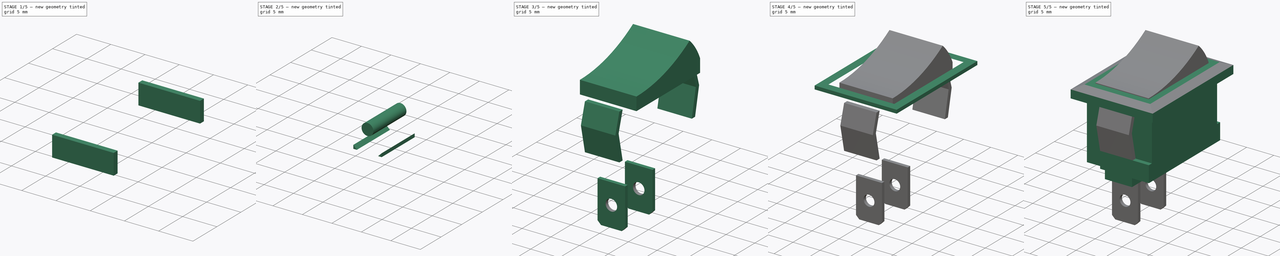
[diagram: build sequence overview — one tinted view per stage of 5, left to right]
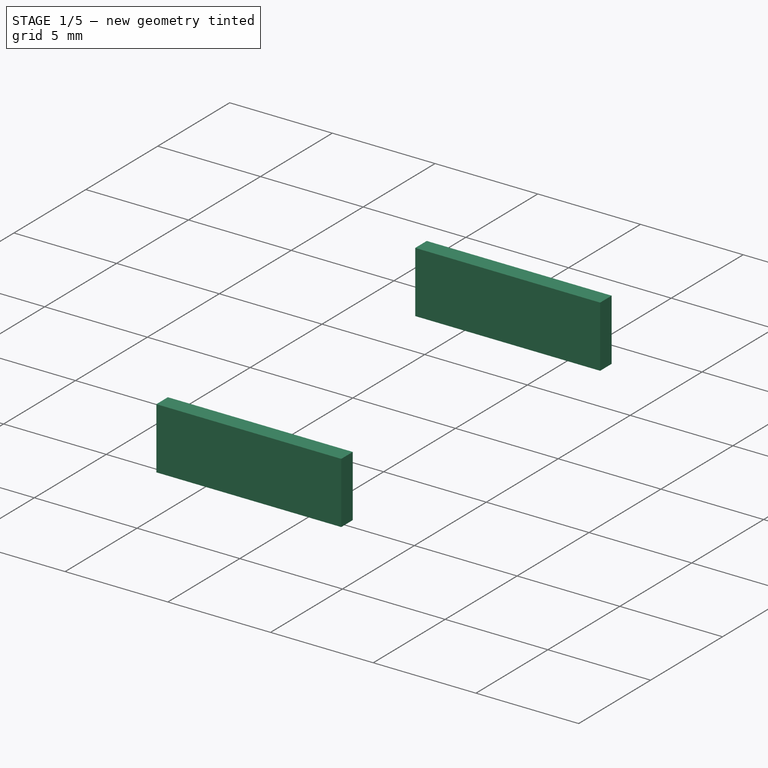
[diagram: stage 1 of 5 — iso view after this stage's code; geometry added in this stage tinted green]
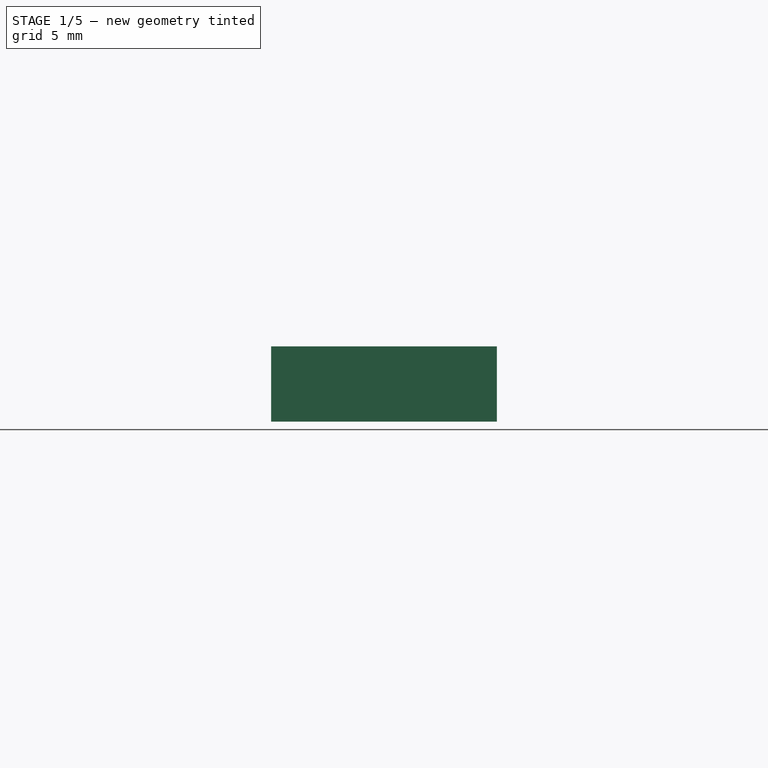
[diagram: stage 1 of 5 — front view after this stage's code; geometry added in this stage tinted green]
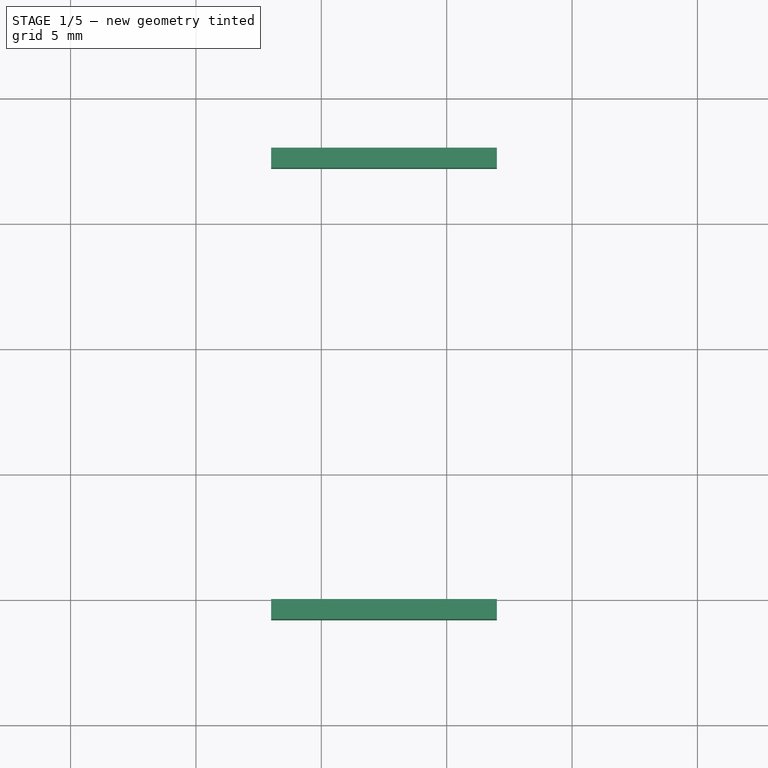
[diagram: stage 1 of 5 — top view after this stage's code; geometry added in this stage tinted green]
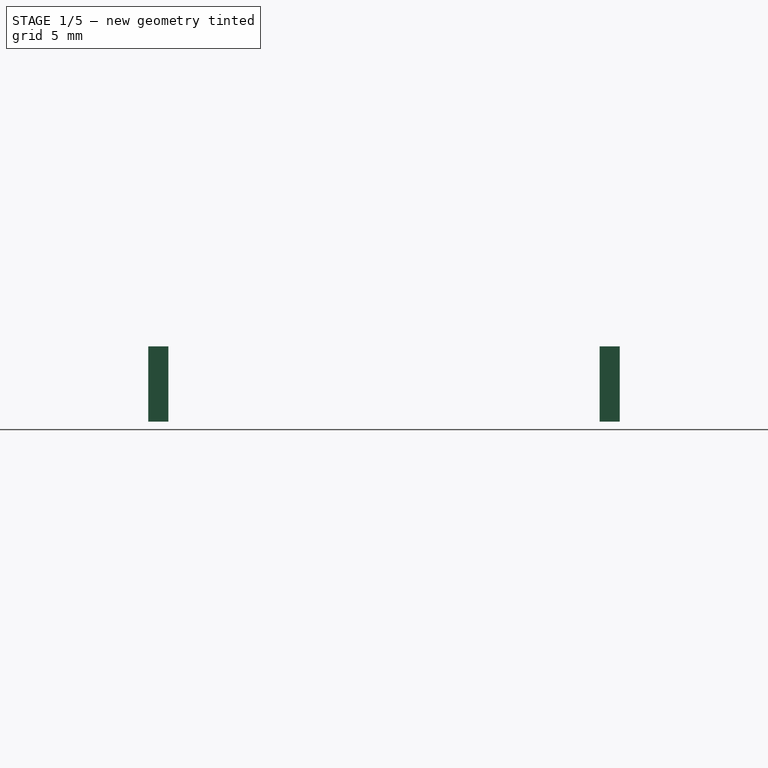
[diagram: stage 1 of 5 — right view after this stage's code; geometry added in this stage tinted green]
FCSTD DOCUMENT  (FreeCAD 1.0R39319 (Git))
Label: interruptor
License: All rights reserved
LicenseURL: https://en.wikipedia.org/wiki/All_rights_reserved
objects: Sketcher::SketchObject×11, Part::Extrusion×11, Part::MultiFuse×2, Part::Cut×2
note: 37 computed .brp shape members not serialized (recipe doc carries the construction recipe); baked Part::Feature solids carry a one-line shape summary decoded from their .brp

FEATURE [Sketcher::SketchObject] Sketch
  ArcFitTolerance = 1e-06
  FullyConstrained = true
  MakeInternals = false
  sketch-geometry (4):
    g0: LineSegment StartX=0 StartY=0 StartZ=0 EndX=12 EndY=0 EndZ=0
    g1: LineSegment StartX=12 StartY=0 StartZ=0 EndX=12 EndY=17.2 EndZ=0
    g2: LineSegment StartX=12 StartY=17.2 StartZ=0 EndX=0 EndY=17.2 EndZ=0
    g3: LineSegment StartX=0 StartY=17.2 StartZ=0 EndX=0 EndY=0 EndZ=0
  constraints (11):
    c: Coincident(g0,g1)
    c: Coincident(g1,g2)
    c: Coincident(g2,g3)
    c: Coincident(g3,g0)
    c: Horizontal(g0)
    c: Horizontal(g2)
    c: Vertical(g1)
    c: Vertical(g3)
    c: Distance(g1,g3) = 12
    c: Distance(g0,g2) = 17.2
    c: Coincident(g0,g-1)
FEATURE [Part::Extrusion] Extrude
  Base = -> Sketch
  Dir = (0,0,1)
  DirMode = 2
  FaceMakerClass = Part::FaceMakerBullseye
  FaceMakerMode = 3
  LengthFwd = 11
  LengthRev = 0
  Solid = true
  Symmetric = false
FEATURE [Sketcher::SketchObject] Sketch001
  ArcFitTolerance = 1e-06
  AttachmentSupport = -> [Extrude]
  ExternalGeometry = -> [Extrude]
  FullyConstrained = true
  MakeInternals = false
  MapMode = 5
  Placement = pos=(0,0,0) rot=(1,0,0;1.5708rad)
  sketch-geometry (4):
    g0: LineSegment StartX=12 StartY=0 StartZ=0 EndX=12 EndY=3 EndZ=0
    g1: LineSegment StartX=12 StartY=3 StartZ=0 EndX=3 EndY=3 EndZ=0
    g2: LineSegment StartX=3 StartY=3 StartZ=0 EndX=3 EndY=0 EndZ=0
    g3: LineSegment StartX=3 StartY=0 StartZ=0 EndX=12 EndY=0 EndZ=0
  constraints (11):
    c: Coincident(g0,g1)
    c: Coincident(g1,g2)
    c: Coincident(g2,g3)
    c: Coincident(g3,g0)
    c: Vertical(g0)
    c: Vertical(g2)
    c: Horizontal(g1)
    c: Horizontal(g3)
    c: Distance(g0,g2) = 9
    c: Distance(g1,g3) = 3
    c: Coincident(g0,g-3)
FEATURE [Part::Extrusion] Extrude001
  Base = -> Sketch001
  Dir = (0,-1,2e-16)
  DirMode = 2
  FaceMakerClass = Part::FaceMakerBullseye
  FaceMakerMode = 3
  LengthFwd = 0.8
  LengthRev = 0
  Solid = true
  Symmetric = false
FEATURE [Sketcher::SketchObject] Sketch002
  ArcFitTolerance = 1e-06
  AttachmentSupport = -> [Extrude]
  ExternalGeometry = -> [Extrude]
  FullyConstrained = true
  MakeInternals = false
  MapMode = 5
  Placement = pos=(0,17.2,0) rot=(0,0.707107,0.707107;3.14159rad)
  sketch-geometry (4):
    g0: LineSegment StartX=-12 StartY=0 StartZ=0 EndX=-3 EndY=0 EndZ=0
    g1: LineSegment StartX=-3 StartY=0 StartZ=0 EndX=-3 EndY=3 EndZ=0
    g2: LineSegment StartX=-3 StartY=3 StartZ=0 EndX=-12 EndY=3 EndZ=0
    g3: LineSegment StartX=-12 StartY=3 StartZ=0 EndX=-12 EndY=0 EndZ=0
  constraints (11):
    c: Coincident(g0,g1)
    c: Coincident(g1,g2)
    c: Coincident(g2,g3)
    c: Coincident(g3,g0)
    c: Horizontal(g0)
    c: Horizontal(g2)
    c: Vertical(g1)
    c: Vertical(g3)
    c: Distance(g1,g3) = 9
    c: Distance(g0,g2) = 3
    c: Coincident(g0,g-3)
FEATURE [Part::Extrusion] Extrude002
  Base = -> Sketch002
  Dir = (0,1,-2e-16)
  DirMode = 2
  FaceMakerClass = Part::FaceMakerBullseye
  FaceMakerMode = 3
  LengthFwd = 0.8
  LengthRev = 0
  Solid = true
  Symmetric = false
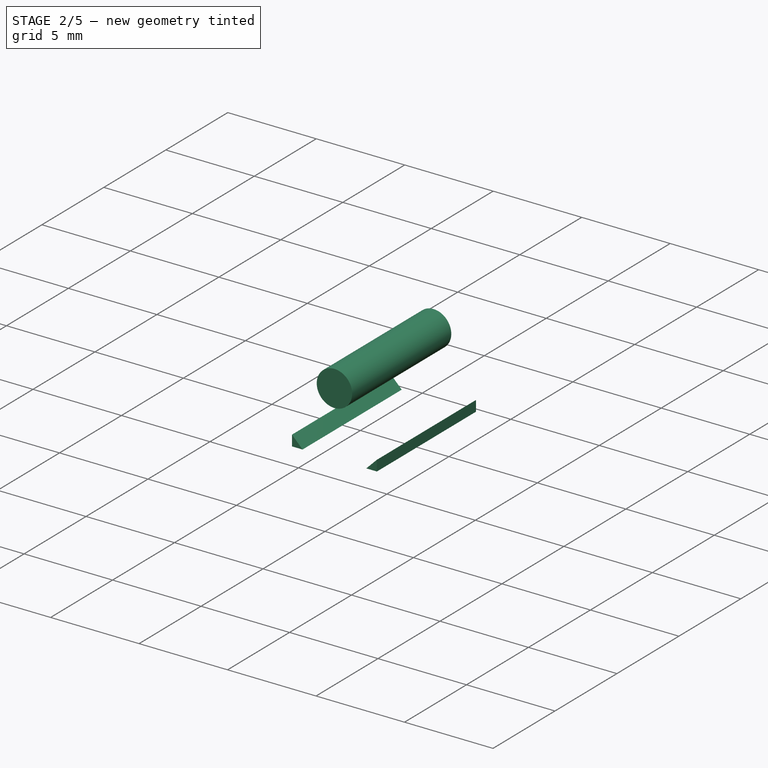
[diagram: stage 2 of 5 — iso view after this stage's code; geometry added in this stage tinted green]
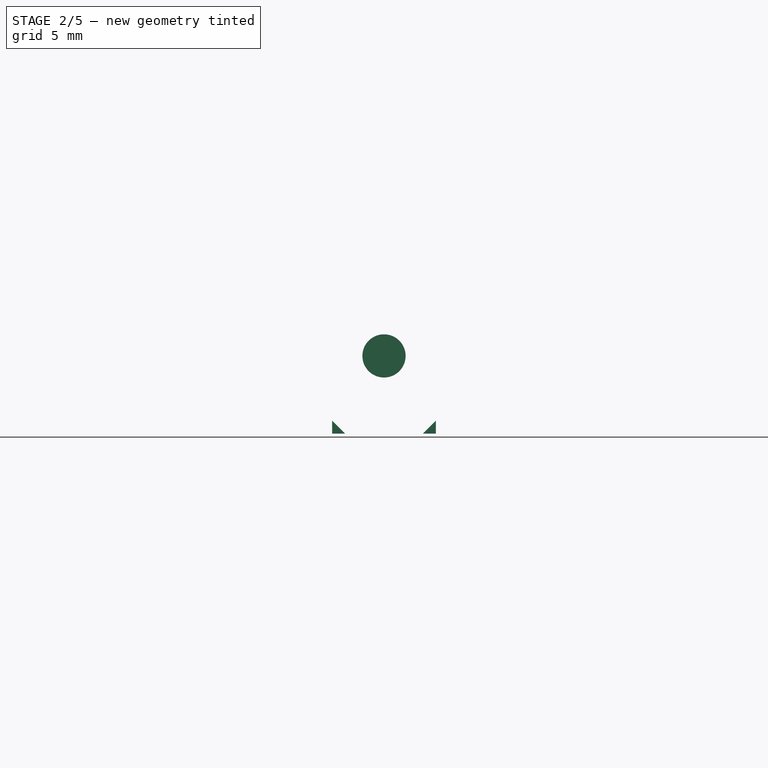
[diagram: stage 2 of 5 — front view after this stage's code; geometry added in this stage tinted green]
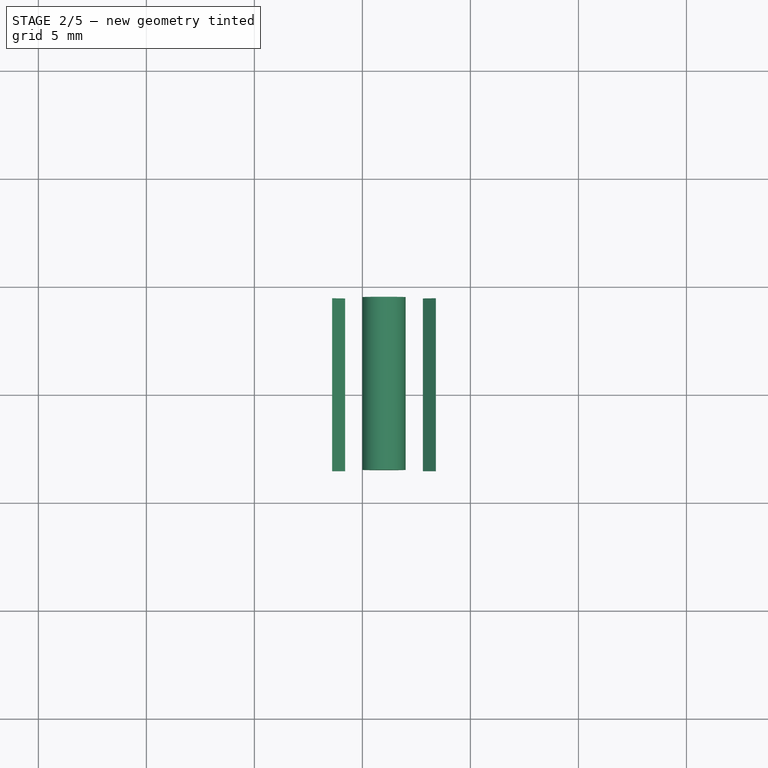
[diagram: stage 2 of 5 — top view after this stage's code; geometry added in this stage tinted green]
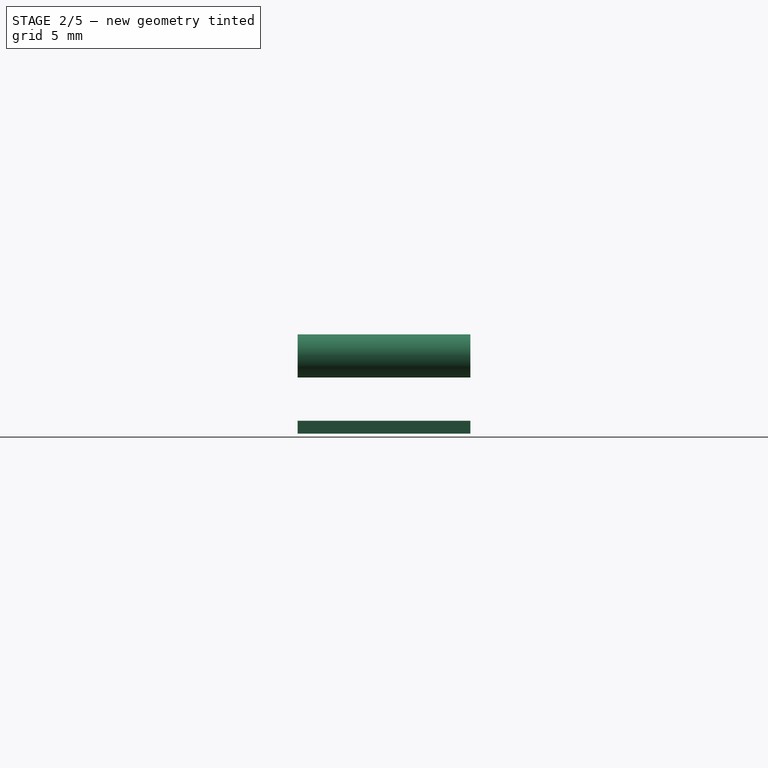
[diagram: stage 2 of 5 — right view after this stage's code; geometry added in this stage tinted green]
FEATURE [Sketcher::SketchObject] Sketch008
  ArcFitTolerance = 1e-06
  AttachmentSupport = -> [Extrude]
  ExternalGeometry = -> [Extrude,Extrude001,Extrude002]
  FullyConstrained = true
  MakeInternals = false
  MapMode = 5
  Placement = pos=(0,0,0) rot=(1,0,0;3.14159rad)
  sketch-geometry (16):
    g0: LineSegment StartX=3.5 StartY=0.25 StartZ=0 EndX=3.5 EndY=-3.85 EndZ=0
    g1: LineSegment StartX=3.5 StartY=-3.85 StartZ=0 EndX=8.5 EndY=-3.85 EndZ=0
    g2: LineSegment StartX=8.5 StartY=-3.85 StartZ=0 EndX=8.5 EndY=0.25 EndZ=0
    g3: LineSegment StartX=8.5 StartY=0.25 StartZ=0 EndX=3.5 EndY=0.25 EndZ=0
    g4: LineSegment StartX=3.5 StartY=-6.55 StartZ=0 EndX=3.5 EndY=-10.65 EndZ=0
    g5: LineSegment StartX=3.5 StartY=-10.65 StartZ=0 EndX=8.5 EndY=-10.65 EndZ=0
    g6: LineSegment StartX=8.5 StartY=-10.65 StartZ=0 EndX=8.5 EndY=-6.55 EndZ=0
    g7: LineSegment StartX=8.5 StartY=-6.55 StartZ=0 EndX=3.5 EndY=-6.55 EndZ=0
    g8: LineSegment StartX=3.5 StartY=-13.35 StartZ=0 EndX=3.5 EndY=-17.45 EndZ=0
    g9: LineSegment StartX=3.5 StartY=-17.45 StartZ=0 EndX=8.5 EndY=-17.45 EndZ=0
    g10: LineSegment StartX=8.5 StartY=-17.45 StartZ=0 EndX=8.5 EndY=-13.35 EndZ=0
    g11: LineSegment StartX=8.5 StartY=-13.35 StartZ=0 EndX=3.5 EndY=-13.35 EndZ=0
    g12: LineSegment [constr] StartX=3.5 StartY=-8.6 StartZ=0 EndX=0 EndY=-8.6 EndZ=0
    g13: LineSegment [constr] StartX=3.5 StartY=-8.6 StartZ=0 EndX=3.5 EndY=-1.8 EndZ=0
    g14: LineSegment [constr] StartX=3.5 StartY=-8.6 StartZ=0 EndX=3.5 EndY=-15.4 EndZ=0
    g15: LineSegment [constr] StartX=6 StartY=0.25 StartZ=0 EndX=6 EndY=0 EndZ=0
  constraints (44):
    c: Coincident(g0,g1)
    c: Coincident(g1,g2)
    c: Coincident(g2,g3)
    c: Coincident(g3,g0)
    c: Vertical(g0)
    c: Vertical(g2)
    c: Horizontal(g1)
    c: Horizontal(g3)
    c: Coincident(g4,g5)
    c: Coincident(g5,g6)
    c: Coincident(g6,g7)
    c: Coincident(g7,g4)
    c: Vertical(g4)
    c: Vertical(g6)
    c: Horizontal(g5)
    c: Horizontal(g7)
    c: Coincident(g8,g9)
    c: Coincident(g9,g10)
    c: Coincident(g10,g11)
    c: Coincident(g11,g8)
    c: Vertical(g8)
    c: Vertical(g10)
    c: Horizontal(g9)
    c: Horizontal(g11)
    c: DistanceX(g3,g3) = 5
    c: Equal(g3,g7)
    c: Equal(g7,g11)
    c: DistanceY(g0,g0) = 4.1
    c: Equal(g0,g4)
    c: Equal(g4,g8)
    c: Symmetric(g4,g4,g12)
    c: Horizontal(g12)
    c: Symmetric(g-1,g-4,g12)
    c: Coincident(g13,g12)
    c: Vertical(g13)
    c: Symmetric(g0,g0,g13)
    c: DistanceY(g13,g13) = 6.8
    c: Coincident(g14,g12)
    c: Symmetric(g8,g8,g14)
    c: Vertical(g14)
    c: Equal(g14,g13)
    c: Symmetric(g3,g3,g15)
    c: Symmetric(g-3,g-1,g15)
    c: Vertical(g15)
FEATURE [Part::Extrusion] Extrude008
  Base = -> Sketch008
  Dir = (0,0,-1)
  DirMode = 2
  FaceMakerClass = Part::FaceMakerBullseye
  FaceMakerMode = 3
  LengthFwd = 1.8
  LengthRev = 0
  Solid = true
  Symmetric = false
FEATURE [Sketcher::SketchObject] Sketch009
  ArcFitTolerance = 1e-06
  AttachmentSupport = -> [Extrude008]
  ExternalGeometry = -> [Extrude008]
  FullyConstrained = true
  MakeInternals = false
  MapMode = 5
  Placement = pos=(0,0,-1.8) rot=(1,0,0;3.14159rad)
  sketch-geometry (11):
    g0: LineSegment StartX=3.6 StartY=-1.48 StartZ=0 EndX=3.6 EndY=-2.12 EndZ=0
    g1: LineSegment StartX=3.6 StartY=-2.12 StartZ=0 EndX=8.4 EndY=-2.12 EndZ=0
    g2: LineSegment StartX=8.4 StartY=-2.12 StartZ=0 EndX=8.4 EndY=-1.48 EndZ=0
    g3: LineSegment StartX=8.4 StartY=-1.48 StartZ=0 EndX=3.6 EndY=-1.48 EndZ=0
    g4: LineSegment StartX=3.6 StartY=-8.28 StartZ=0 EndX=3.6 EndY=-8.92 EndZ=0
    g5: LineSegment StartX=3.6 StartY=-8.92 StartZ=0 EndX=8.4 EndY=-8.92 EndZ=0
    g6: LineSegment StartX=8.4 StartY=-8.92 StartZ=0 EndX=8.4 EndY=-8.28 EndZ=0
    g7: LineSegment StartX=8.4 StartY=-8.28 StartZ=0 EndX=3.6 EndY=-8.28 EndZ=0
    g8: LineSegment [constr] StartX=3.5 StartY=-1.8 StartZ=0 EndX=3.6 EndY=-1.8 EndZ=0
    g9: LineSegment [constr] StartX=3.5 StartY=-8.6 StartZ=0 EndX=3.6 EndY=-8.6 EndZ=0
    g10: LineSegment [constr] StartX=6 StartY=-1.48 StartZ=0 EndX=6 EndY=0.25 EndZ=0
  constraints (30):
    c: Coincident(g0,g1)
    c: Coincident(g1,g2)
    c: Coincident(g2,g3)
    c: Coincident(g3,g0)
    c: Vertical(g0)
    c: Vertical(g2)
    c: Horizontal(g1)
    c: Horizontal(g3)
    c: Coincident(g4,g5)
    c: Coincident(g5,g6)
    c: Coincident(g6,g7)
    c: Coincident(g7,g4)
    c: Vertical(g4)
    c: Vertical(g6)
    c: Horizontal(g5)
    c: Horizontal(g7)
    c: DistanceY(g0,g0) = 0.64
    c: DistanceX(g3,g3) = 4.8
    c: Equal(g4,g0)
    c: Equal(g3,g7)
    c: Vertical(g1,g6)
    c: Symmetric(g-3,g-3,g8)
    c: Symmetric(g0,g0,g8)
    c: Horizontal(g8)
    c: Symmetric(g-4,g-4,g9)
    c: Symmetric(g4,g4,g9)
    c: Horizontal(g9)
    c: Symmetric(g3,g3,g10)
    c: Symmetric(g-6,g-6,g10)
    c: Vertical(g10)
FEATURE [Part::Extrusion] Extrude009
  Base = -> Sketch009
  Dir = (0,0,-1)
  DirMode = 2
  FaceMakerClass = Part::FaceMakerBullseye
  FaceMakerMode = 3
  LengthFwd = 7.2
  LengthRev = 0
  Solid = true
  Symmetric = false
FEATURE [Sketcher::SketchObject] Sketch010
  ArcFitTolerance = 1e-06
  AttachmentSupport = -> [Extrude009]
  ExternalGeometry = -> [Extrude009]
  FullyConstrained = true
  MakeInternals = false
  MapMode = 5
  Placement = pos=(0,1.48,0) rot=(1,0,0;1.5708rad)
  sketch-geometry (8):
    g0: LineSegment StartX=3.6 StartY=-9 StartZ=0 EndX=4.2 EndY=-9 EndZ=0
    g1: LineSegment StartX=4.2 StartY=-9 StartZ=0 EndX=3.6 EndY=-8.4 EndZ=0
    g2: LineSegment StartX=3.6 StartY=-9 StartZ=0 EndX=3.6 EndY=-8.4 EndZ=0
    g3: LineSegment StartX=8.4 StartY=-9 StartZ=0 EndX=7.8 EndY=-9 EndZ=0
    g4: LineSegment StartX=8.4 StartY=-9 StartZ=0 EndX=8.4 EndY=-8.4 EndZ=0
    g5: LineSegment StartX=7.8 StartY=-9 StartZ=0 EndX=8.4 EndY=-8.4 EndZ=0
    g6: Circle CenterX=6 CenterY=-5.4 CenterZ=0 NormalX=0 NormalY=0 NormalZ=1 AngleXU=0 Radius=1
    g7: LineSegment [constr] StartX=6 StartY=-5.4 StartZ=0 EndX=6 EndY=-9 EndZ=0
  constraints (21):
    c: Coincident(g0,g-3)
    c: Coincident(g1,g0)
    c: Coincident(g2,g0)
    c: Coincident(g2,g1)
    c: Coincident(g3,g-3)
    c: Coincident(g4,g3)
    c: Coincident(g5,g3)
    c: Coincident(g5,g4)
    c: Horizontal(g0)
    c: Horizontal(g3)
    c: Vertical(g4)
    c: Vertical(g2)
    c: Distance(g0) = 0.6
    c: Equal(g2,g0)
    c: Equal(g0,g3)
    c: Equal(g3,g4)
    c: Diameter(g6) = 2
    c: Coincident(g7,g6)
    c: Symmetric(g-3,g-3,g7)
    c: Vertical(g7)
    c: DistanceY(g7,g7) = 3.6
FEATURE [Part::Extrusion] Extrude010
  Base = -> Sketch010
  Dir = (0,-1,2e-16)
  DirMode = 2
  FaceMakerClass = Part::FaceMakerBullseye
  FaceMakerMode = 3
  LengthFwd = 0
  LengthRev = 8
  Solid = true
  Symmetric = false
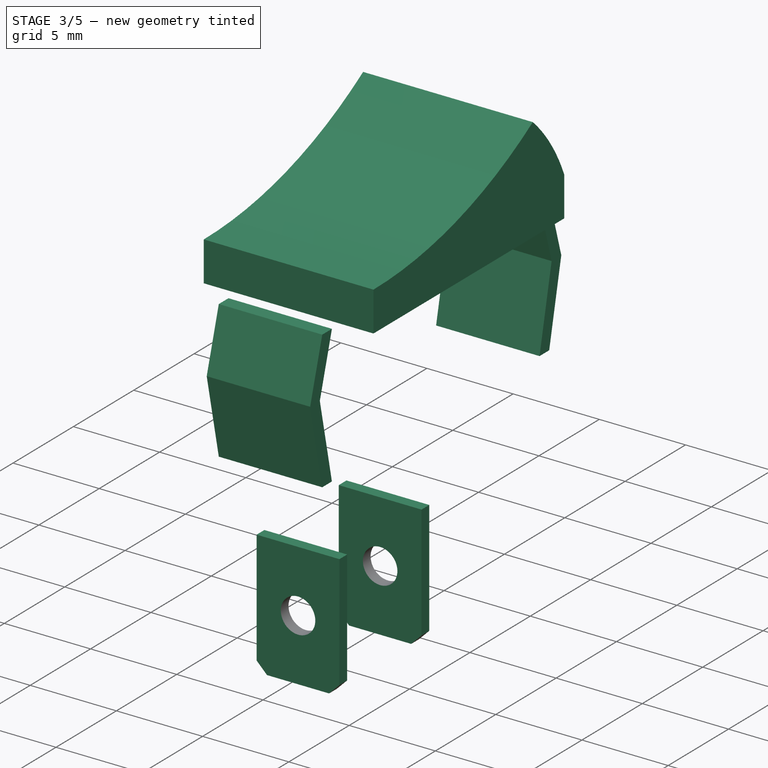
[diagram: stage 3 of 5 — iso view after this stage's code; geometry added in this stage tinted green]
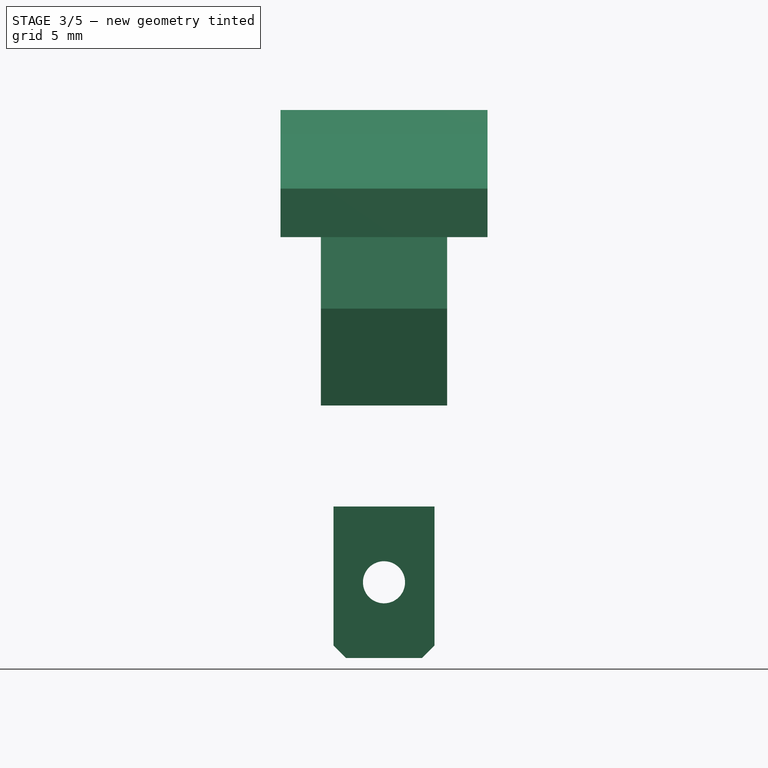
[diagram: stage 3 of 5 — front view after this stage's code; geometry added in this stage tinted green]
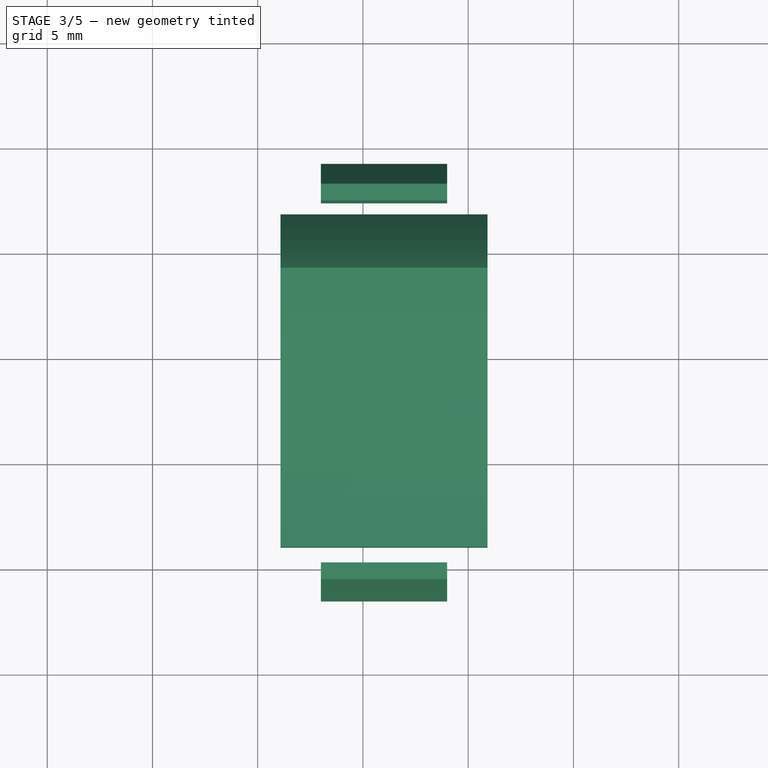
[diagram: stage 3 of 5 — top view after this stage's code; geometry added in this stage tinted green]
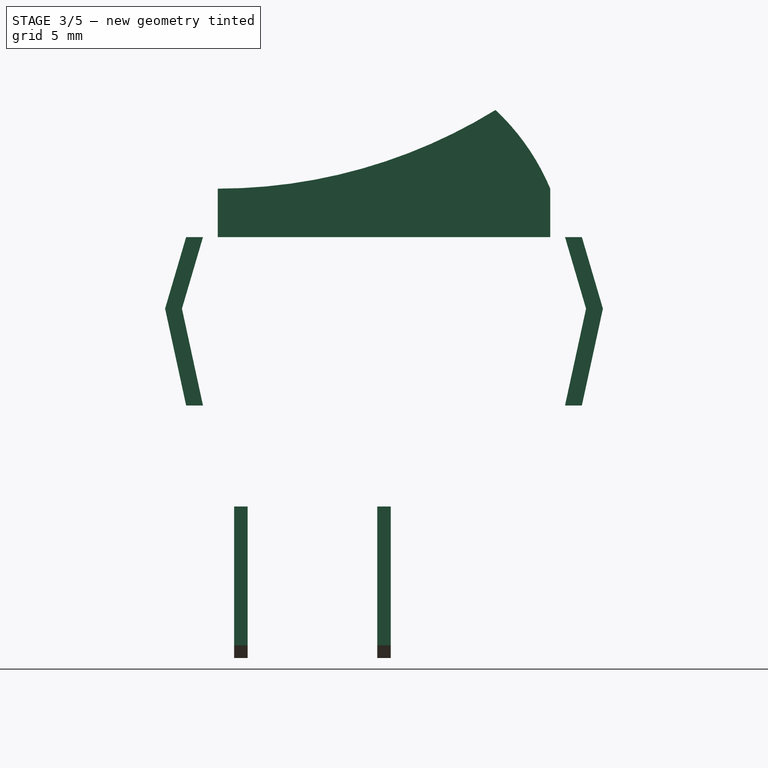
[diagram: stage 3 of 5 — right view after this stage's code; geometry added in this stage tinted green]
FEATURE [Sketcher::SketchObject] Sketch006
  ArcFitTolerance = 1e-06
  AttachmentOffset = pos=(0,0,-9) rot=(0,0,1;0rad)
  AttachmentSupport = -> [Extrude]
  ExternalGeometry = -> [Extrude002,Extrude,Extrude001]
  FullyConstrained = true
  MakeInternals = false
  MapMode = 5
  Placement = pos=(3,0,0) rot=(0.57735,0.57735,0.57735;2.0944rad)
  sketch-geometry (14):
    g0: LineSegment StartX=17.2 StartY=3 StartZ=0 EndX=18.2 EndY=7.6 EndZ=0
    g1: LineSegment StartX=18.2 StartY=7.6 StartZ=0 EndX=17.2 EndY=11 EndZ=0
    g2: LineSegment StartX=18 StartY=3 StartZ=0 EndX=19 EndY=7.6 EndZ=0
    g3: LineSegment StartX=19 StartY=7.6 StartZ=0 EndX=18 EndY=11 EndZ=0
    g4: LineSegment StartX=18 StartY=11 StartZ=0 EndX=17.2 EndY=11 EndZ=0
    g5: LineSegment [constr] StartX=19 StartY=7.6 StartZ=0 EndX=17.2 EndY=7.6 EndZ=0
    g6: LineSegment StartX=17.2 StartY=3 StartZ=0 EndX=18 EndY=3 EndZ=0
    g7: LineSegment StartX=-0.8 StartY=3 StartZ=0 EndX=-1.8 EndY=7.6 EndZ=0
    g8: LineSegment StartX=-1.8 StartY=7.6 StartZ=0 EndX=-0.8 EndY=11 EndZ=0
    g9: LineSegment StartX=-0.8 StartY=11 StartZ=0 EndX=0 EndY=11 EndZ=0
    g10: LineSegment StartX=0 StartY=11 StartZ=0 EndX=-1 EndY=7.6 EndZ=0
    g11: LineSegment StartX=-1 StartY=7.6 StartZ=0 EndX=6e-16 EndY=3 EndZ=0
    g12: LineSegment StartX=6e-16 StartY=3 StartZ=0 EndX=-0.8 EndY=3 EndZ=0
    g13: LineSegment [constr] StartX=-1.8 StartY=7.6 StartZ=0 EndX=0 EndY=7.6 EndZ=0
  constraints (36):
    c: Coincident(g0,g-3)
    c: Coincident(g1,g0)
    c: Coincident(g1,g-4)
    c: Coincident(g2,g-3)
    c: Coincident(g3,g2)
    c: Coincident(g4,g3)
    c: Coincident(g4,g1)
    c: Horizontal(g4)
    c: DistanceY(g2,g2) = 4.6
    c: Horizontal(g0,g2)
    c: Equal(g-3,g4)
    c: Coincident(g5,g2)
    c: PointOnObject(g5,g-4)
    c: Horizontal(g5)
    c: DistanceX(g5,g5) = 1.8
    c: Parallel(g0,g2)
    c: Coincident(g6,g0)
    c: Coincident(g6,g2)
    c: Coincident(g7,g-6)
    c: Coincident(g8,g7)
    c: Coincident(g9,g8)
    c: Coincident(g9,g-5)
    c: Coincident(g10,g9)
    c: Coincident(g11,g10)
    c: Coincident(g11,g-6)
    c: Coincident(g12,g11)
    c: Coincident(g12,g7)
    c: Horizontal(g9)
    c: Coincident(g13,g7)
    c: PointOnObject(g13,g-5)
    c: Horizontal(g13)
    c: Equal(g13,g5)
    c: Equal(g12,g9)
    c: Horizontal(g7,g10)
    c: Horizontal(g7,g2)
    c: Parallel(g7,g11)
FEATURE [Part::Extrusion] Extrude006
  Base = -> Sketch006
  Dir = (1,0,0)
  DirMode = 2
  FaceMakerClass = Part::FaceMakerBullseye
  FaceMakerMode = 3
  LengthFwd = 6
  LengthRev = 0
  Solid = true
  Symmetric = false
FEATURE [Sketcher::SketchObject] Sketch007
  ArcFitTolerance = 1e-06
  AttachmentOffset = pos=(0,0,-1.08) rot=(0,0,1;0rad)
  AttachmentSupport = -> [Extrude]
  ExternalGeometry = -> [Extrude]
  FullyConstrained = true
  MakeInternals = false
  MapMode = 5
  Placement = pos=(1.08,0,0) rot=(0.57735,-0.57735,-0.57735;2.0944rad)
  sketch-geometry (8):
    g0: LineSegment StartX=-0.7 StartY=11 StartZ=0 EndX=-0.7 EndY=13.3 EndZ=0
    g1: LineSegment [constr] StartX=-13.9 StartY=11 StartZ=0 EndX=-13.9 EndY=17.04 EndZ=0
    g2: ArcOfCircle CenterX=-0.7 CenterY=38.4641 CenterZ=0 NormalX=0 NormalY=0 NormalZ=1 AngleXU=0 Radius=25.1641 StartAngle=4.16019 EndAngle=4.71239
    g3: LineSegment [constr] StartX=-0.7 StartY=11 StartZ=0 EndX=0 EndY=11 EndZ=0
    g4: LineSegment [constr] StartX=-17.2 StartY=11 StartZ=0 EndX=-16.5 EndY=11 EndZ=0
    g5: LineSegment StartX=-16.5 StartY=11 StartZ=0 EndX=-16.5 EndY=13.3 EndZ=0
    g6: ArcOfCircle CenterX=-6.36378 CenterY=9.02717 CenterZ=0 NormalX=0 NormalY=0 NormalZ=1 AngleXU=0 Radius=11 StartAngle=2.32555 EndAngle=2.74266
    g7: LineSegment StartX=-16.5 StartY=11 StartZ=0 EndX=-0.7 EndY=11 EndZ=0
  constraints (24):
    c: Distance(g0) = 2.3
    c: PointOnObject(g0,g-3)
    c: Vertical(g0)
    c: PointOnObject(g1,g-3)
    c: Vertical(g1)
    c: DistanceY(g0,g1) = 3.74
    c: Coincident(g2,g0)
    c: Coincident(g2,g1)
    c: DistanceX(g1,g0) = 13.2
    c: Vertical(g2,g0)
    c: Coincident(g3,g0)
    c: Coincident(g3,g-3)
    c: DistanceX(g3,g3) = 0.7
    c: Coincident(g4,g-3)
    c: Equal(g4,g3)
    c: Horizontal(g4)
    c: Coincident(g5,g4)
    c: Vertical(g5)
    c: Horizontal(g5,g0)
    c: Coincident(g6,g1)
    c: Coincident(g6,g5)
    c: Diameter(g6) = 22
    c: Coincident(g7,g4)
    c: Coincident(g7,g0)
FEATURE [Part::Extrusion] Extrude007
  Base = -> Sketch007
  Dir = (-1,0,0)
  DirMode = 2
  FaceMakerClass = Part::FaceMakerBullseye
  FaceMakerMode = 3
  LengthFwd = 0
  LengthRev = 9.84
  Solid = true
  Symmetric = false
FEATURE [Part::Cut] Cut001
  Base = -> Extrude009
  Tool = -> Extrude010
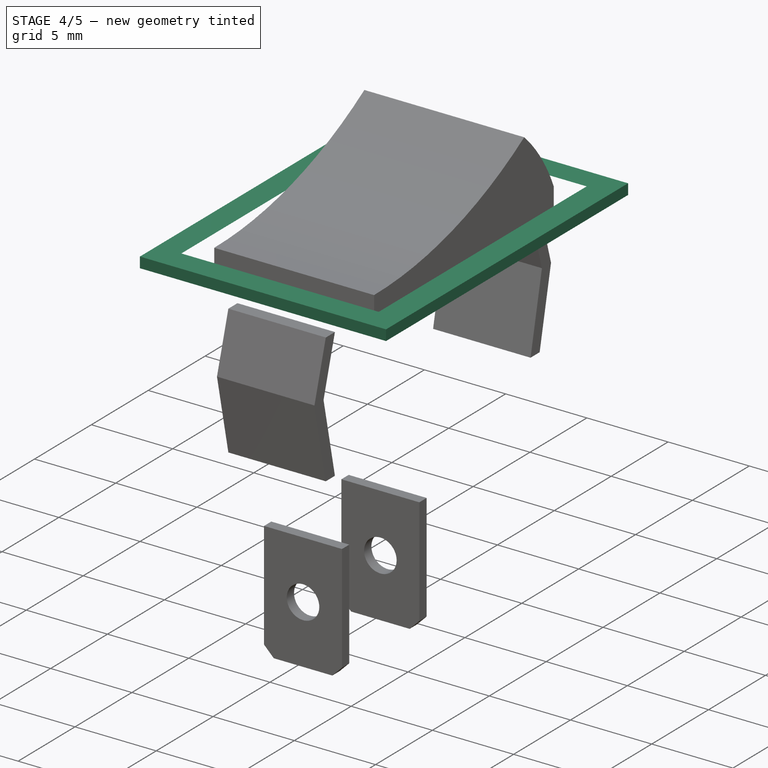
[diagram: stage 4 of 5 — iso view after this stage's code; geometry added in this stage tinted green]
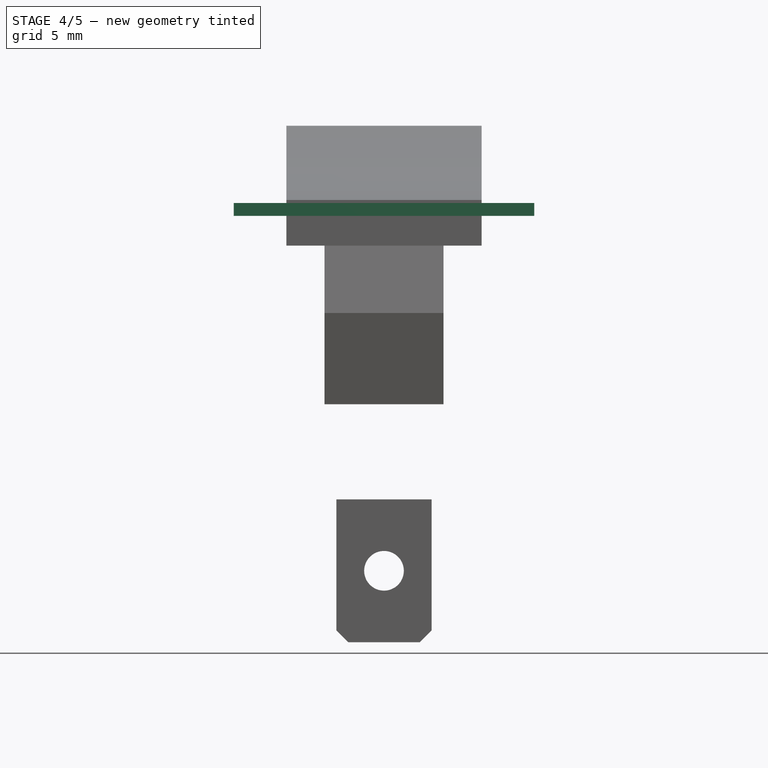
[diagram: stage 4 of 5 — front view after this stage's code; geometry added in this stage tinted green]
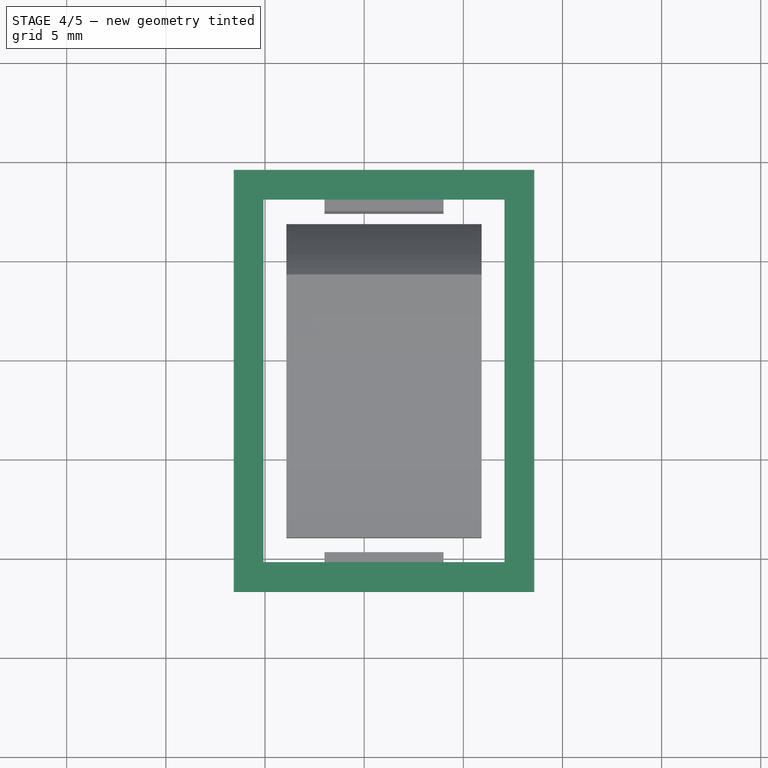
[diagram: stage 4 of 5 — top view after this stage's code; geometry added in this stage tinted green]
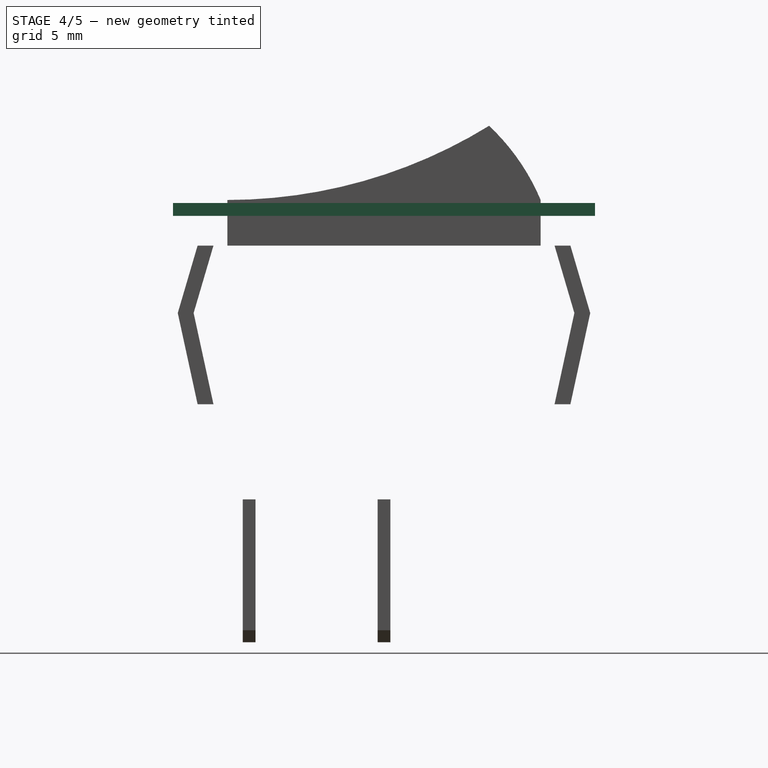
[diagram: stage 4 of 5 — right view after this stage's code; geometry added in this stage tinted green]
FEATURE [Sketcher::SketchObject] Sketch003
  ArcFitTolerance = 1e-06
  AttachmentSupport = -> [Extrude]
  ExternalGeometry = -> [Extrude]
  FullyConstrained = true
  MakeInternals = false
  MapMode = 5
  Placement = pos=(0,0,11) rot=(0,0,1;0rad)
  sketch-geometry (6):
    g0: LineSegment StartX=-1.575 StartY=19.24 StartZ=0 EndX=-1.575 EndY=-2.04 EndZ=0
    g1: LineSegment StartX=-1.575 StartY=-2.04 StartZ=0 EndX=13.575 EndY=-2.04 EndZ=0
    g2: LineSegment StartX=13.575 StartY=-2.04 StartZ=0 EndX=13.575 EndY=19.24 EndZ=0
    g3: LineSegment StartX=13.575 StartY=19.24 StartZ=0 EndX=-1.575 EndY=19.24 EndZ=0
    g4: LineSegment [constr] StartX=6 StartY=0 StartZ=0 EndX=6 EndY=-2.04 EndZ=0
    g5: LineSegment [constr] StartX=-1.575 StartY=8.6 StartZ=0 EndX=0 EndY=8.6 EndZ=0
  constraints (16):
    c: Coincident(g0,g1)
    c: Coincident(g1,g2)
    c: Coincident(g2,g3)
    c: Coincident(g3,g0)
    c: Vertical(g0)
    c: Vertical(g2)
    c: Horizontal(g1)
    c: Horizontal(g3)
    c: DistanceY(g0,g0) = 21.28
    c: DistanceX(g1,g1) = 15.15
    c: Symmetric(g-4,g-4,g4)
    c: Symmetric(g1,g1,g4)
    c: Vertical(g4)
    c: Symmetric(g0,g0,g5)
    c: Horizontal(g5)
    c: Symmetric(g-3,g-1,g5)
FEATURE [Part::Extrusion] Extrude003
  Base = -> Sketch003
  Dir = (0,0,1)
  DirMode = 2
  FaceMakerClass = Part::FaceMakerBullseye
  FaceMakerMode = 3
  LengthFwd = 2.15
  LengthRev = 0
  Solid = true
  Symmetric = false
FEATURE [Sketcher::SketchObject] Sketch004
  ArcFitTolerance = 1e-06
  AttachmentSupport = -> [Extrude003]
  ExternalGeometry = -> [Extrude003]
  FullyConstrained = true
  MakeInternals = false
  MapMode = 5
  Placement = pos=(0,19.24,0) rot=(0,0.707107,0.707107;3.14159rad)
  sketch-geometry (6):
    g0: LineSegment StartX=-12.075 StartY=13.15 StartZ=0 EndX=-13.575 EndY=12.5 EndZ=0
    g1: LineSegment StartX=-13.575 StartY=12.5 StartZ=0 EndX=-13.575 EndY=13.15 EndZ=0
    g2: LineSegment StartX=-13.575 StartY=13.15 StartZ=0 EndX=-12.075 EndY=13.15 EndZ=0
    g3: LineSegment StartX=1.575 StartY=13.15 StartZ=0 EndX=1.575 EndY=12.5 EndZ=0
    g4: LineSegment StartX=1.575 StartY=12.5 StartZ=0 EndX=0.075 EndY=13.15 EndZ=0
    g5: LineSegment StartX=0.075 StartY=13.15 StartZ=0 EndX=1.575 EndY=13.15 EndZ=0
  constraints (16):
    c: Coincident(g1,g0)
    c: Coincident(g1,g-3)
    c: Coincident(g2,g1)
    c: Coincident(g2,g0)
    c: Vertical(g1)
    c: Horizontal(g2)
    c: DistanceY(g-4,g0) = 1.5
    c: DistanceX(g2,g2) = 1.5
    c: Coincident(g3,g-3)
    c: Coincident(g4,g3)
    c: Coincident(g5,g4)
    c: Coincident(g5,g3)
    c: Horizontal(g5)
    c: Vertical(g3)
    c: Horizontal(g3,g0)
    c: Equal(g2,g5)
FEATURE [Part::Extrusion] Extrude004
  Base = -> Sketch004
  Dir = (0,-21.28,0)
  DirLink = -> Extrude003 [Edge10]
  DirMode = 1
  FaceMakerClass = Part::FaceMakerBullseye
  FaceMakerMode = 3
  LengthFwd = 0
  LengthRev = 0
  Solid = true
  Symmetric = false
FEATURE [Sketcher::SketchObject] Sketch005
  ArcFitTolerance = 1e-06
  AttachmentSupport = -> [Extrude003]
  ExternalGeometry = -> [Extrude003]
  FullyConstrained = true
  MakeInternals = false
  MapMode = 5
  Placement = pos=(13.575,0,0) rot=(0.57735,0.57735,0.57735;2.0944rad)
  sketch-geometry (6):
    g0: LineSegment StartX=19.24 StartY=13.15 StartZ=0 EndX=17.74 EndY=13.15 EndZ=0
    g1: LineSegment StartX=19.24 StartY=13.15 StartZ=0 EndX=19.24 EndY=12.5 EndZ=0
    g2: LineSegment StartX=19.24 StartY=12.5 StartZ=0 EndX=17.74 EndY=13.15 EndZ=0
    g3: LineSegment StartX=-2.04 StartY=13.15 StartZ=0 EndX=-0.54 EndY=13.15 EndZ=0
    g4: LineSegment StartX=-2.04 StartY=13.15 StartZ=0 EndX=-2.04 EndY=12.5 EndZ=0
    g5: LineSegment StartX=-2.04 StartY=12.5 StartZ=0 EndX=-0.54 EndY=13.15 EndZ=0
  constraints (16):
    c: Coincident(g0,g-3)
    c: Coincident(g1,g0)
    c: Coincident(g2,g1)
    c: Coincident(g2,g0)
    c: Coincident(g3,g-3)
    c: Coincident(g4,g3)
    c: Coincident(g5,g4)
    c: Coincident(g5,g3)
    c: Horizontal(g3)
    c: Vertical(g4)
    c: Horizontal(g0)
    c: Vertical(g1)
    c: DistanceY(g-4,g4) = 1.5
    c: DistanceX(g3,g3) = 1.5
    c: Equal(g3,g0)
    c: Horizontal(g4,g1)
FEATURE [Part::Extrusion] Extrude005
  Base = -> Sketch005
  Dir = (15.15,0,0)
  DirLink = -> Extrude003 [Edge12]
  DirMode = 1
  FaceMakerClass = Part::FaceMakerBullseye
  FaceMakerMode = 3
  LengthFwd = 0
  LengthRev = 0
  Reversed = true
  Solid = true
  Symmetric = false
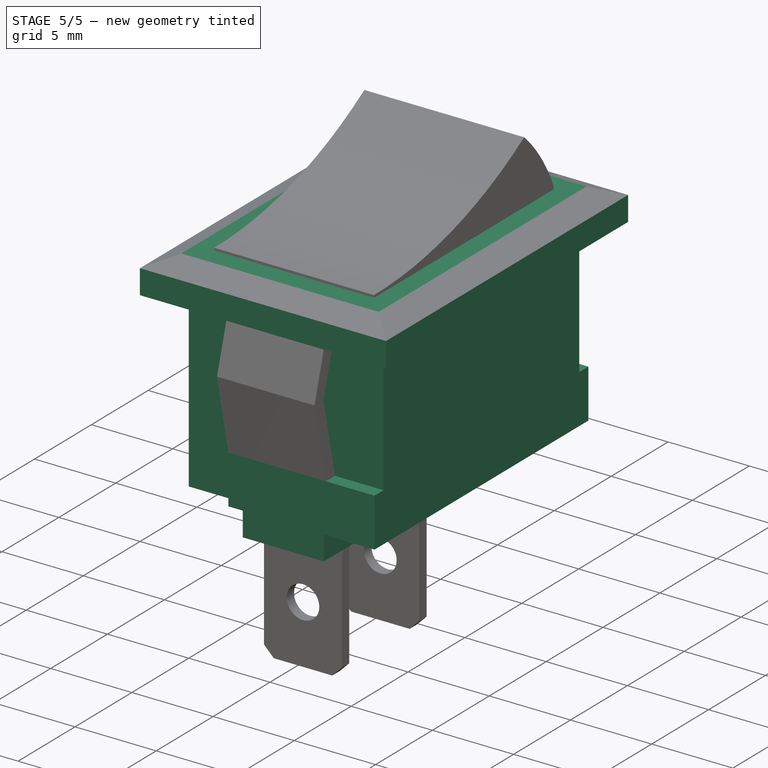
[diagram: stage 5 of 5 — iso view after this stage's code; geometry added in this stage tinted green]
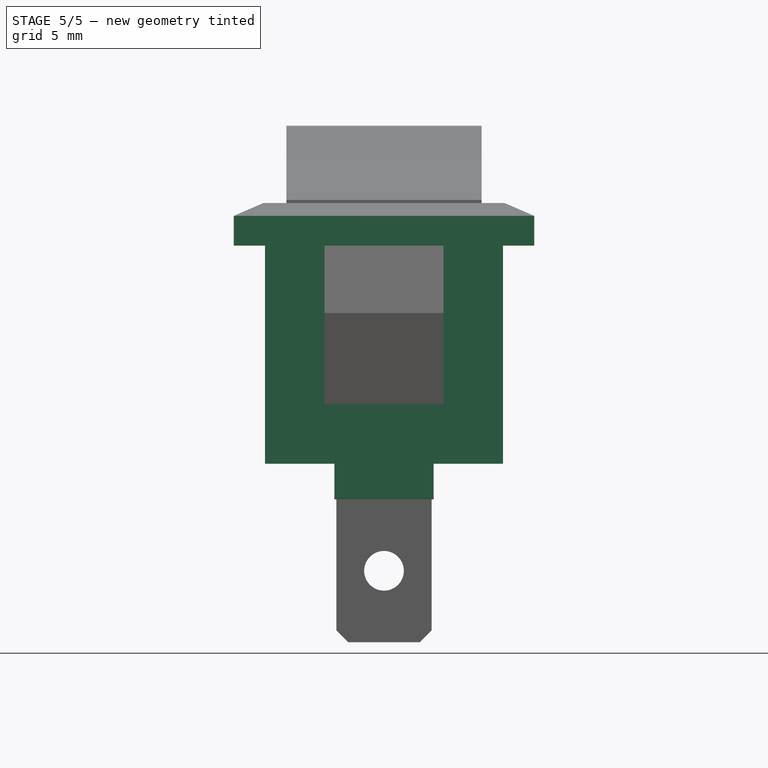
[diagram: stage 5 of 5 — front view after this stage's code; geometry added in this stage tinted green]
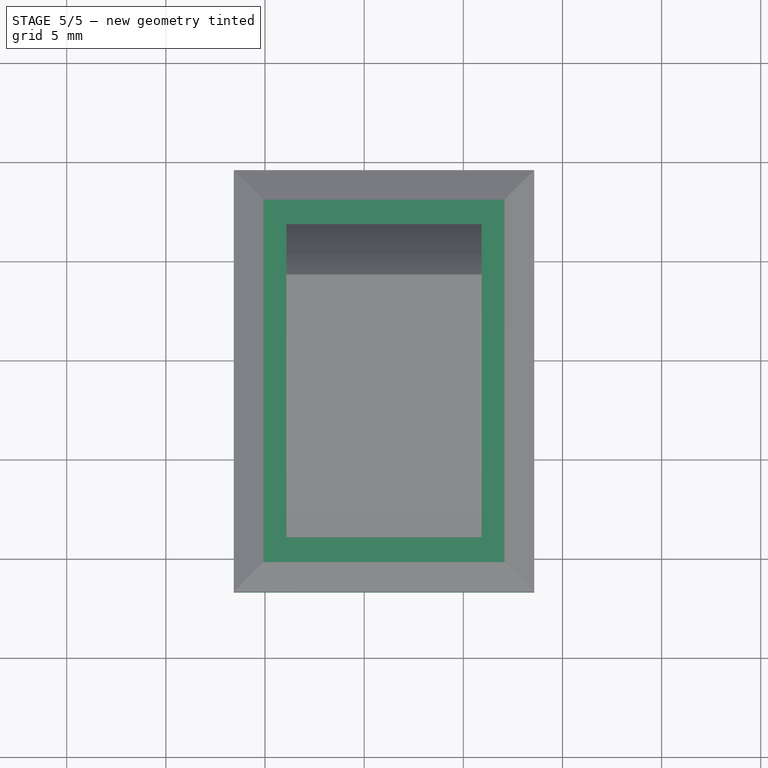
[diagram: stage 5 of 5 — top view after this stage's code; geometry added in this stage tinted green]
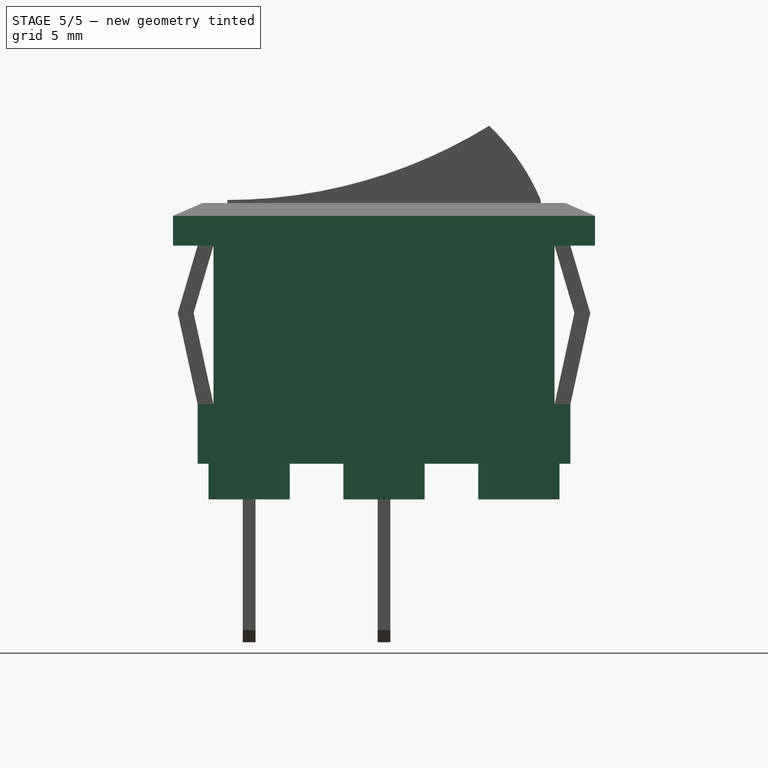
[diagram: stage 5 of 5 — right view after this stage's code; geometry added in this stage tinted green]
FEATURE [Part::MultiFuse] Fusion
  Shapes = -> [Extrude004,Extrude005]
FEATURE [Part::Cut] Cut
  Base = -> Extrude003
  Tool = -> Fusion
FEATURE [Part::MultiFuse] Fusion001
  Shapes = -> [Extrude,Extrude001,Extrude002,Cut,Extrude006,Extrude007,Extrude008,Cut001]
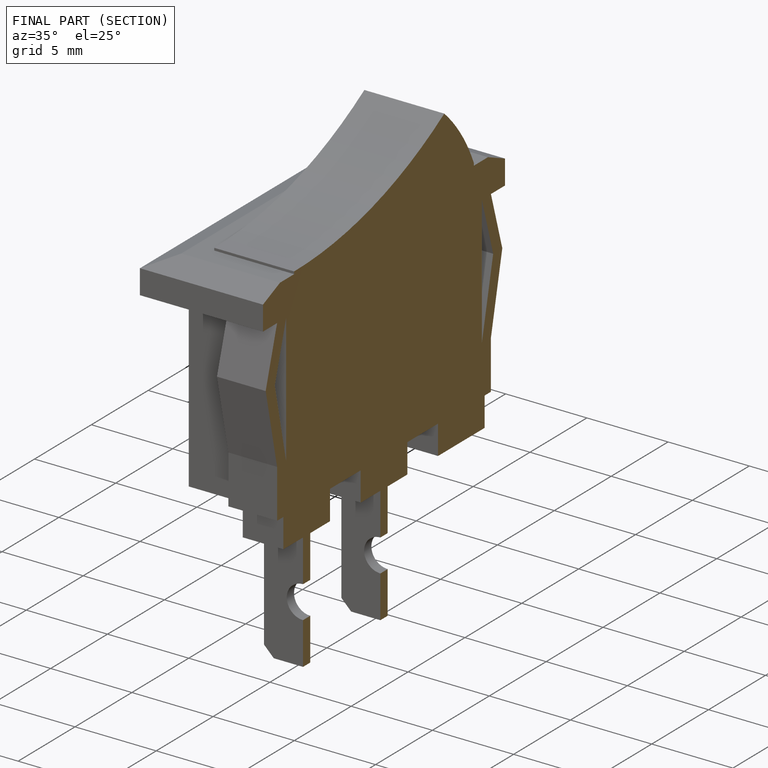
[diagram: finished part — half-section view (interior)]
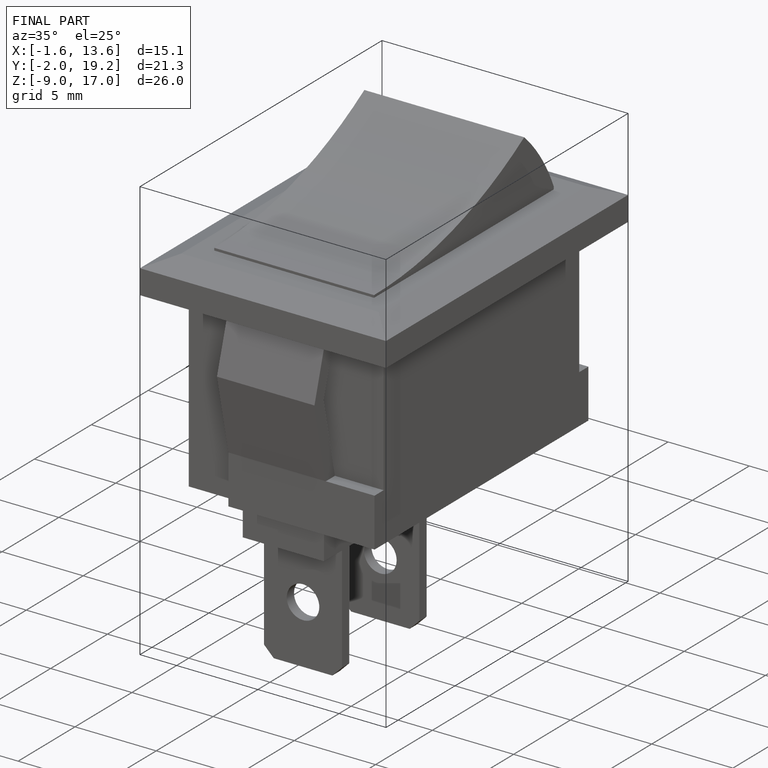
[diagram: finished part — iso view with bounding-box wireframe]
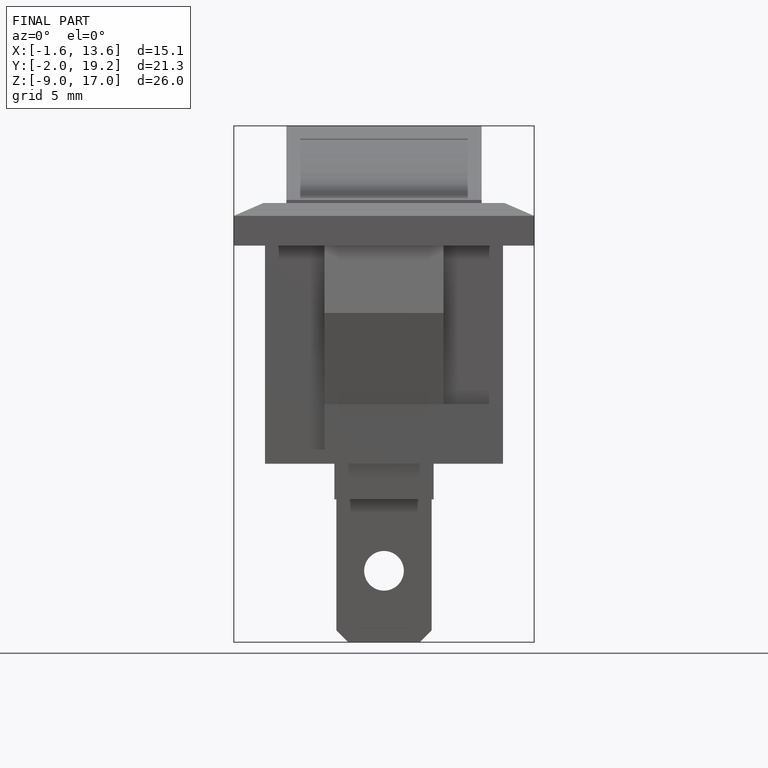
[diagram: finished part — front view with bounding-box wireframe]
